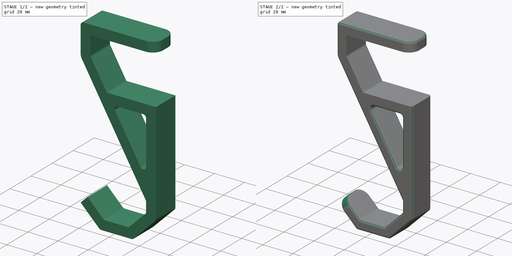
[diagram: build sequence overview — one tinted view per stage of 2, left to right]
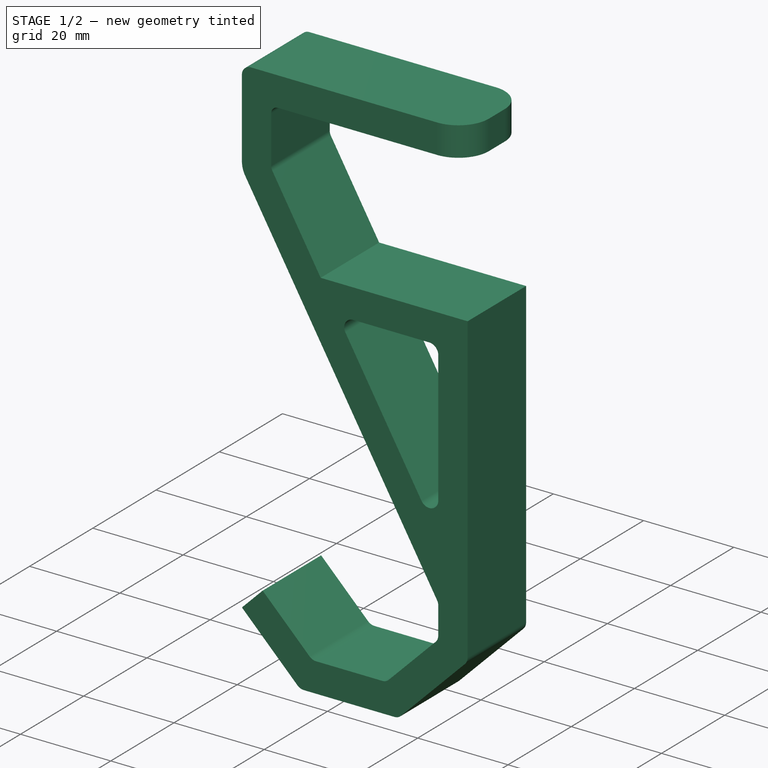
[diagram: stage 1 of 2 — iso view after this stage's code; geometry added in this stage tinted green]
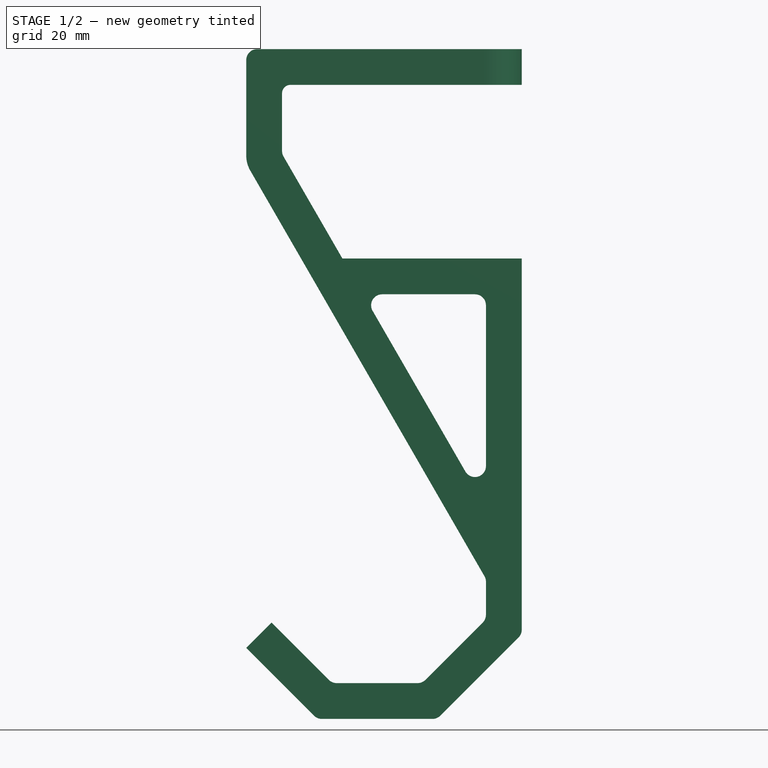
[diagram: stage 1 of 2 — front view after this stage's code; geometry added in this stage tinted green]
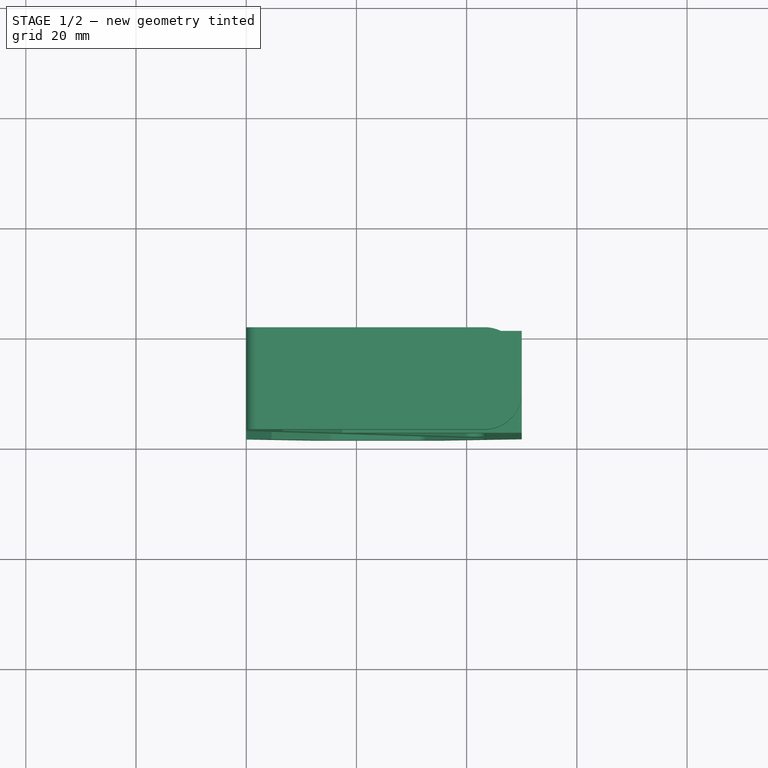
[diagram: stage 1 of 2 — top view after this stage's code; geometry added in this stage tinted green]
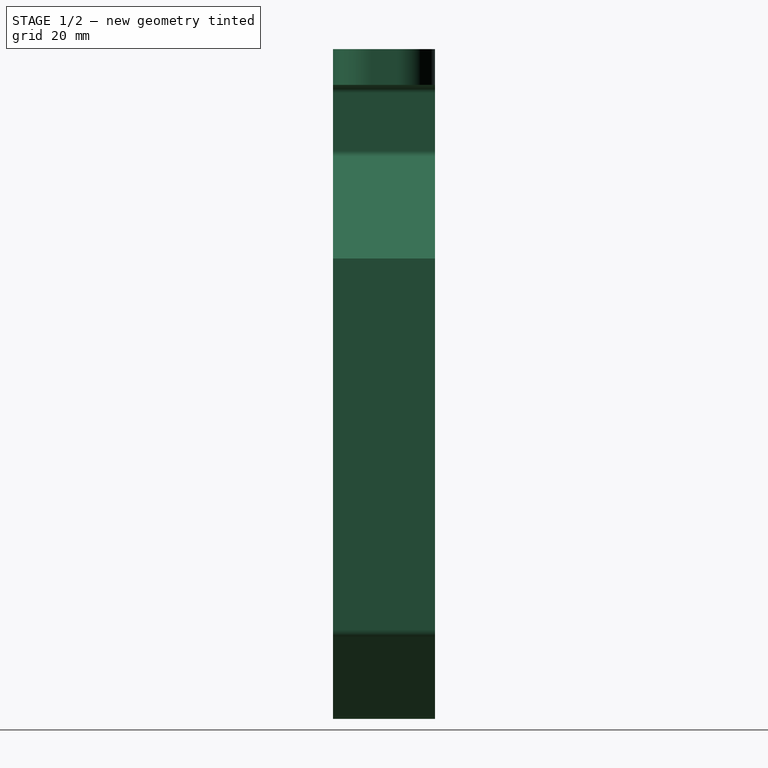
[diagram: stage 1 of 2 — right view after this stage's code; geometry added in this stage tinted green]
FCSTD DOCUMENT  (FreeCAD 0.18R4 (GitTag))
Label: desk_hook
License: All rights reserved
LicenseURL: http://en.wikipedia.org/wiki/All_rights_reserved
objects: Sketcher::SketchObject×3, PartDesign::Pocket×2, PartDesign::Pad×1, PartDesign::Body×1, Part::Fillet×1
note: 11 computed .brp shape members not serialized (recipe doc carries the construction recipe); baked Part::Feature solids carry a one-line shape summary decoded from their .brp

FEATURE [Sketcher::SketchObject] Sketch  label="sketch003"
  MapMode = 5
  Placement = pos=(0,0,0) rot=(1,0,0;1.5708rad)
  Support = -> [XZ_Plane]
  expr: Constraints[27] = Constraints.material_thickness
  expr: Constraints[40] = Constraints.material_thickness
  expr: Constraints[65] = Constraints.material_thickness
  expr: Constraints[63] = Constraints.material_thickness
  expr: Constraints[62] = Constraints.material_thickness
  expr: Constraints[60] = Constraints.material_thickness
  expr: Constraints[38] = Constraints.material_thickness
  sketch-geometry (34):
    g0: LineSegment StartX=50 StartY=121.552 StartZ=0 EndX=2 EndY=121.552 EndZ=0
    g1: LineSegment StartX=0 StartY=12.8843 StartZ=0 EndX=12.2985 EndY=0.585786 EndZ=0
    g2: LineSegment StartX=13.7127 StartY=0 StartZ=0 EndX=33.7977 EndY=0 EndZ=0
    g3: LineSegment StartX=35.2119 StartY=0.585786 StartZ=0 EndX=49.4142 EndY=14.7881 EndZ=0
    g4: LineSegment StartX=42.9142 StartY=17.4804 StartZ=0 EndX=32.5196 EndY=7.08579 EndZ=0
    g5: LineSegment StartX=31.1053 StartY=6.5 StartZ=0 EndX=16.4051 EndY=6.5 EndZ=0
    g6: LineSegment StartX=14.9909 StartY=7.08579 StartZ=0 EndX=4.59619 EndY=17.4804 EndZ=0
    g7: LineSegment StartX=8 StartY=115.052 StartZ=0 EndX=50 EndY=115.052 EndZ=0
    g8: LineSegment StartX=50 StartY=115.052 StartZ=0 EndX=50 EndY=121.552 EndZ=0
    g9: LineSegment StartX=0.73686 StartY=99.4985 StartZ=0 EndX=43.2321 EndY=25.8947 EndZ=0
    g10: LineSegment StartX=43.5 StartY=24.8947 StartZ=0 EndX=43.5 EndY=18.8947 EndZ=0
    g11: LineSegment StartX=0 StartY=12.8843 StartZ=0 EndX=4.59619 EndY=17.4804 EndZ=0
    g12: LineSegment StartX=50 StartY=83.5523 StartZ=0 EndX=50 EndY=16.2023 EndZ=0
    g13: LineSegment StartX=43.5 StartY=75.0523 StartZ=0 EndX=43.5 EndY=45.8947 EndZ=0
    g14: LineSegment StartX=39.7679 StartY=44.8947 StartZ=0 EndX=22.9338 EndY=74.0523 EndZ=0
    g15: LineSegment StartX=6.5 StartY=113.552 StartZ=0 EndX=6.5 EndY=103.052 EndZ=0
    g16: LineSegment StartX=17.4489 StartY=83.5523 StartZ=0 EndX=50 EndY=83.5523 EndZ=0
    g17: LineSegment StartX=0 StartY=119.552 StartZ=0 EndX=0 EndY=102.248 EndZ=0
    g18: LineSegment StartX=17.4489 StartY=83.5523 StartZ=0 EndX=6.76795 EndY=102.052 EndZ=0
    g19: ArcOfCircle CenterX=8.5 CenterY=103.052 CenterZ=0 NormalX=0 NormalY=0 NormalZ=1 AngleXU=0 Radius=2 StartAngle=3.14159 EndAngle=3.66519
    g20: ArcOfCircle CenterX=8 CenterY=113.552 CenterZ=0 NormalX=0 NormalY=0 NormalZ=1 AngleXU=0 Radius=1.5 StartAngle=1.5708 EndAngle=3.14159
    g21: ArcOfCircle CenterX=41.5 CenterY=45.8947 CenterZ=0 NormalX=0 NormalY=0 NormalZ=1 AngleXU=0 Radius=2 StartAngle=3.66519 EndAngle=6.28319
    g22: ArcOfCircle CenterX=41.5 CenterY=75.0523 CenterZ=0 NormalX=0 NormalY=0 NormalZ=1 AngleXU=0 Radius=2 StartAngle=-1.8e-15 EndAngle=1.5708
    g23: ArcOfCircle CenterX=24.6658 CenterY=75.0523 CenterZ=0 NormalX=0 NormalY=0 NormalZ=1 AngleXU=0 Radius=2 StartAngle=1.5708 EndAngle=3.66519
    g24: LineSegment StartX=24.6658 StartY=77.0523 StartZ=0 EndX=41.5 EndY=77.0523 EndZ=0
    g25: ArcOfCircle CenterX=16.4051 CenterY=8.5 CenterZ=0 NormalX=0 NormalY=0 NormalZ=1 AngleXU=0 Radius=2 StartAngle=3.92699 EndAngle=4.71239
    g26: ArcOfCircle CenterX=31.1053 CenterY=8.5 CenterZ=0 NormalX=0 NormalY=0 NormalZ=1 AngleXU=0 Radius=2 StartAngle=4.71239 EndAngle=5.49779
    g27: ArcOfCircle CenterX=33.7977 CenterY=2 CenterZ=0 NormalX=0 NormalY=0 NormalZ=1 AngleXU=0 Radius=2 StartAngle=4.71239 EndAngle=5.49779
    g28: ArcOfCircle CenterX=13.7127 CenterY=2 CenterZ=0 NormalX=0 NormalY=0 NormalZ=1 AngleXU=0 Radius=2 StartAngle=3.92699 EndAngle=4.71239
    g29: ArcOfCircle CenterX=41.5 CenterY=24.8947 CenterZ=0 NormalX=0 NormalY=0 NormalZ=1 AngleXU=0 Radius=2 StartAngle=5e-16 EndAngle=0.523599
    g30: ArcOfCircle CenterX=41.5 CenterY=18.8947 CenterZ=0 NormalX=0 NormalY=0 NormalZ=1 AngleXU=0 Radius=2 StartAngle=5.49779 EndAngle=6.28319
    g31: ArcOfCircle CenterX=48 CenterY=16.2023 CenterZ=0 NormalX=0 NormalY=0 NormalZ=1 AngleXU=0 Radius=2 StartAngle=5.49779 EndAngle=6.28319
    g32: ArcOfCircle CenterX=2 CenterY=119.552 CenterZ=0 NormalX=0 NormalY=0 NormalZ=1 AngleXU=0 Radius=2 StartAngle=1.5708 EndAngle=3.14159
    g33: ArcOfCircle CenterX=5.5 CenterY=102.248 CenterZ=0 NormalX=0 NormalY=0 NormalZ=1 AngleXU=0 Radius=5.5 StartAngle=3.14159 EndAngle=3.66519
  constraints (88):
    c: Vertical(g8)
    c: Horizontal(g0)
    c: Horizontal(g7)
    c: Horizontal(g5)
    c: Tangent(g2,g-1)
    c: Parallel(g1,g6)
    c: Equal(g6,g4)
    c: Vertical(g13)
    c: Vertical(g10)
    c: Perpendicular(g6,g11)
    c: Equal(g5,g4)
    c: Parallel(g4,g3)
    c: Angle(g4,g5) = 2.35619
    c: Angle(g5,g6) = 2.35619
    c: Parallel(g12,g13)
    c: Vertical(g17)
    c: Coincident(g16,g18)
    c: Tangent(g15,g19) = -1.5708
    c: Tangent(g18,g19) = 1.5708
    c: Radius(g19) = 2
    c: Parallel(g15,g17)
    c: Parallel(g18,g14)
    c: Parallel(g14,g9)
    c: Distance(g16,g9) = 6.5
    c: Tangent(g15,g20) = -1.5708
    c: Tangent(g7,g20) = 1.5708
    c: Radius(g20) = 1.5
    c: Distance(g15,g17) = 6.5
    c: Tangent(g23,g24) = 1.5708
    c: Tangent(g14,g23) = 1.5708
    c: Tangent(g22,g24) = 1.5708
    c: Tangent(g13,g22) = 1.5708
    c: Tangent(g13,g21) = 1.5708
    c: Tangent(g14,g21) = 1.5708
    c: Radius(g22) = 2
    c: Equal(g22,g23)
    c: Equal(g22,g21)
    c: Parallel(g24,g16)
    c: Distance(g14,g9) = 6.5
    c: Parallel(g7,g16)
    c: Distance(g23,g16) = 6.5
    c: Tangent(g6,g25) = 1.5708
    c: Tangent(g5,g25) = 1.5708
    c: Tangent(g4,g26) = 1.5708
    c: Tangent(g5,g26) = 1.5708
    c: Tangent(g2,g27) = -1.5708
    c: Tangent(g3,g27) = -1.5708
    c: Tangent(g1,g28) = -1.5708
    c: Tangent(g2,g28) = -1.5708
    c: Tangent(g9,g29) = 1.5708
    c: Tangent(g10,g29) = 1.5708
    c: Tangent(g10,g30) = 1.5708
    c: Tangent(g4,g30) = 1.5708
    c: Tangent(g12,g31) = 1.5708
    c: Tangent(g3,g31) = -1.5708
    c: Tangent(g17,g32) = -1.5708
    c: Tangent(g0,g32) = -1.5708
    c: Tangent(g17,g33) = -1.5708
    c: Tangent(g9,g33) = -1.5708
    c: DistanceY(g7,g0) = 6.5  'material_thickness'
    c: Distance(g13,g12) = 6.5
    c: PointOnObject(g17,g-2)
    c: Distance(g6,g1) = 6.5
    c: Distance(g5,g2) = 6.5
    c: Distance(g4,g3) = 6.5
    c: Distance(g10,g12) = 6.5
    c: Radius(g28) = 2
    c: Equal(g28,g27)
    c: Radius(g31) = 2
    c: Radius(g29) = 2
    c: Equal(g29,g30)
    c: Radius(g26) = 2
    c: DistanceX(g11,g17) = 0
    c: DistanceX(g12,g8) = 0
    c: DistanceY(g16,g7) = 31.5
    c: Radius(g25) = 2
    c: Radius(g32) = 2
    c: Radius(g33) = 5.5
    c: DistanceY(g10,g10) = 6
    c: DistanceX(g17,g8) = 50
    c: Coincident(g0,g8)
    c: Coincident(g7,g8)
    c: Coincident(g6,g11)
    c: Coincident(g1,g11)
    c: DistanceY(g2,g0) = 121.552
    c: Angle(g16,g18) = 2.0944
    c: DistanceY(g18,g7) = 13
    c: Coincident(g12,g16)
FEATURE [PartDesign::Pad] Pad
  Length = 18.5
  Length2 = 100
  Placement = pos=(0,0,0) rot=(1,0,0;1.5708rad)
  Profile = -> Sketch
  Type = 0
FEATURE [Sketcher::SketchObject] Sketch001
  ExternalGeometry = -> [Pad]
  MapMode = 5
  Placement = pos=(0,-2.7e-14,121.552) rot=(0,0,1;3.14159rad)
  Support = -> [Pad]
  sketch-geometry (6):
    g0: LineSegment StartX=-43.25 StartY=5.027e-13 StartZ=0 EndX=-51 EndY=5.027e-13 EndZ=0
    g1: LineSegment StartX=-51 StartY=5.027e-13 StartZ=0 EndX=-51 EndY=18.5 EndZ=0
    g2: LineSegment StartX=-51 StartY=18.5 StartZ=0 EndX=-43.25 EndY=18.5 EndZ=0
    g3: LineSegment StartX=-50 StartY=11.75 StartZ=0 EndX=-50 EndY=6.75 EndZ=0
    g4: ArcOfCircle CenterX=-43.25 CenterY=6.75 CenterZ=0 NormalX=0 NormalY=0 NormalZ=1 AngleXU=0 Radius=6.75 StartAngle=3.14159 EndAngle=4.71239
    g5: ArcOfCircle CenterX=-43.25 CenterY=11.75 CenterZ=0 NormalX=0 NormalY=0 NormalZ=1 AngleXU=0 Radius=6.75 StartAngle=1.5708 EndAngle=3.14159
  constraints (16):
    c: Coincident(g0,g1)
    c: Coincident(g1,g2)
    c: PointOnObject(g3,g-5)
    c: Vertical(g3)
    c: Horizontal(g2)
    c: Horizontal(g0)
    c: Vertical(g1)
    c: PointOnObject(g0,g-7)
    c: PointOnObject(g2,g-6)
    c: Equal(g2,g0)
    c: Tangent(g0,g4) = 1.5708
    c: Tangent(g2,g5) = 1.5708
    c: Tangent(g3,g4) = -1.5708
    c: Tangent(g3,g5) = -1.5708
    c: DistanceY(g3,g3) = 5
    c: Distance(g3,g1) = 1
FEATURE [PartDesign::Pocket] Pocket
  BaseFeature = -> Pad
  Length = 5
  Length2 = 100
  Placement = pos=(0,0,0) rot=(1,0,0;1.5708rad)
  Profile = -> Sketch001
  Type = 2
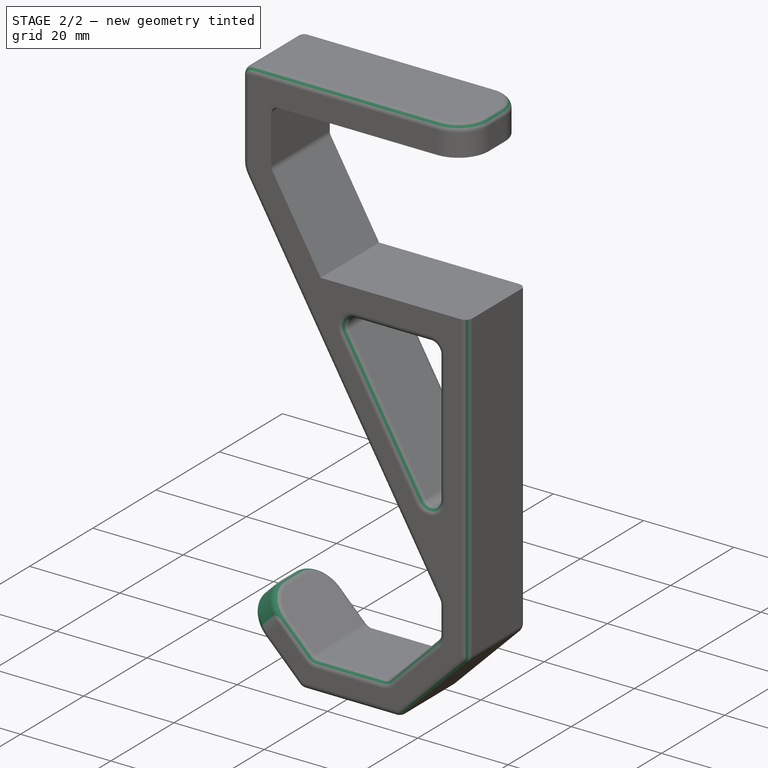
[diagram: stage 2 of 2 — iso view after this stage's code; geometry added in this stage tinted green]
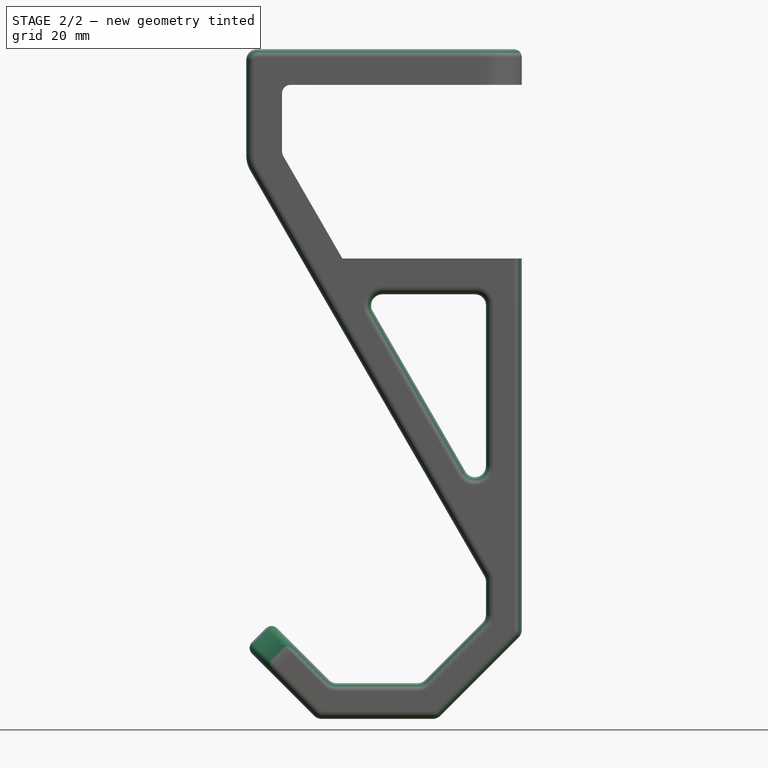
[diagram: stage 2 of 2 — front view after this stage's code; geometry added in this stage tinted green]
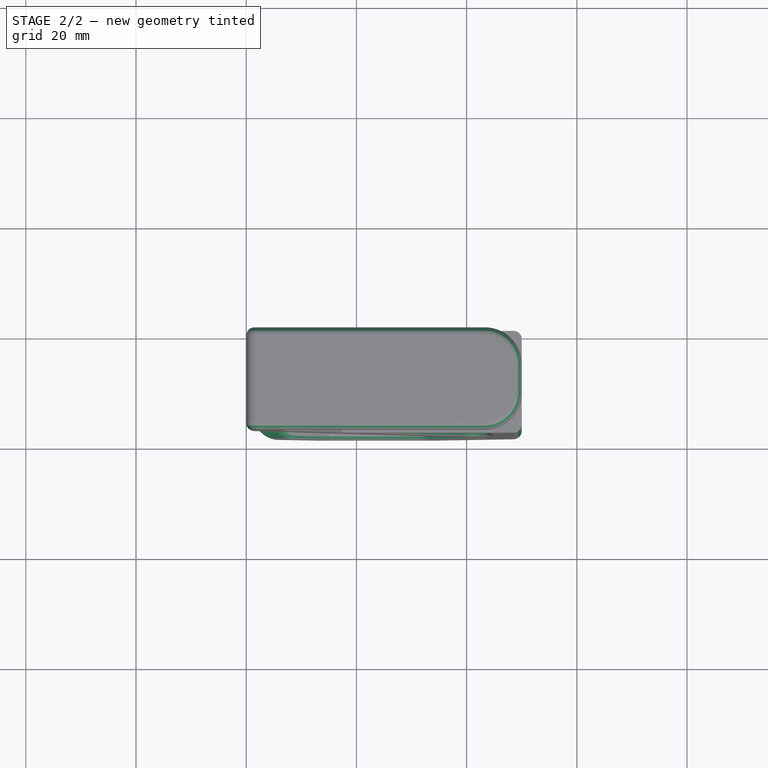
[diagram: stage 2 of 2 — top view after this stage's code; geometry added in this stage tinted green]
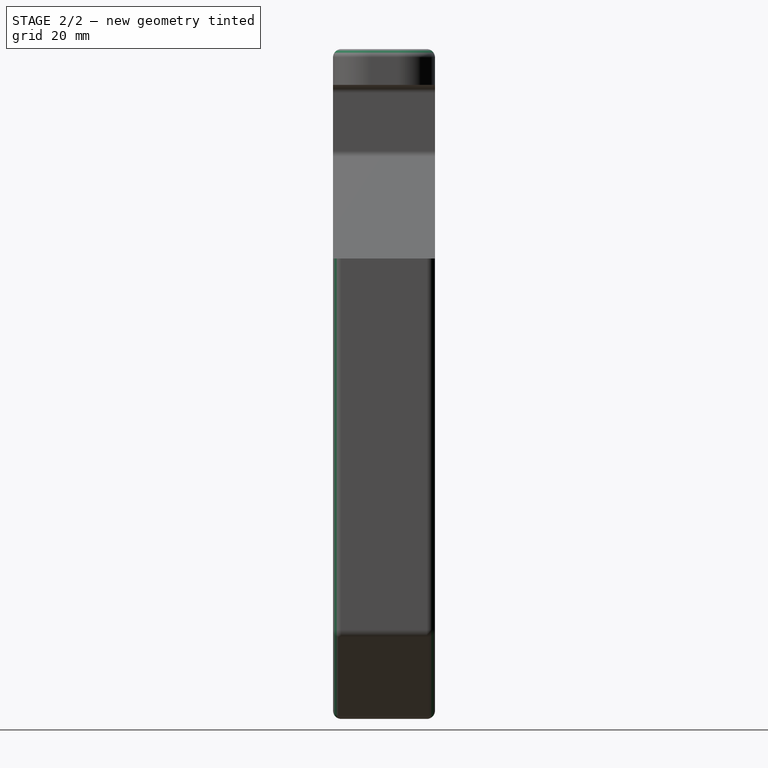
[diagram: stage 2 of 2 — right view after this stage's code; geometry added in this stage tinted green]
FEATURE [Sketcher::SketchObject] Sketch002
  ExternalGeometry = -> [Pocket]
  MapMode = 5
  Placement = pos=(6.44213,-1.4e-15,6.44213) rot=(0.92388,0,-0.382683;3.14159rad)
  Support = -> [Pad]
  sketch-geometry (6):
    g0: LineSegment StartX=-10.1105 StartY=18.5 StartZ=0 EndX=-2.36054 EndY=18.5 EndZ=0
    g1: LineSegment StartX=-9.11054 StartY=11.75 StartZ=0 EndX=-9.11054 EndY=6.75 EndZ=0
    g2: LineSegment StartX=-2.36054 StartY=0 StartZ=0 EndX=-10.1105 EndY=0 EndZ=0
    g3: LineSegment StartX=-10.1105 StartY=0 StartZ=0 EndX=-10.1105 EndY=18.5 EndZ=0
    g4: ArcOfCircle CenterX=-2.36054 CenterY=6.75 CenterZ=0 NormalX=0 NormalY=0 NormalZ=1 AngleXU=0 Radius=6.75 StartAngle=3.14159 EndAngle=4.71239
    g5: ArcOfCircle CenterX=-2.36054 CenterY=11.75 CenterZ=0 NormalX=0 NormalY=0 NormalZ=1 AngleXU=0 Radius=6.75 StartAngle=1.5708 EndAngle=3.14159
  constraints (16):
    c: Coincident(g2,g3)
    c: Coincident(g0,g3)
    c: Tangent(g0,g5) = 1.5708
    c: Tangent(g2,g4) = 1.5708
    c: Parallel(g0,g2)
    c: DistanceX(g-3,g1) = 0
    c: Vertical(g1)
    c: Tangent(g1,g5) = -1.5708
    c: Tangent(g1,g4) = -1.5708
    c: Horizontal(g0)
    c: Equal(g0,g2)
    c: Vertical(g3)
    c: PointOnObject(g0,g-3)
    c: PointOnObject(g2,g-1)
    c: DistanceY(g1,g1) = 5
    c: Distance(g1,g3) = 1
FEATURE [PartDesign::Pocket] Pocket001
  BaseFeature = -> Pocket
  Length = 5
  Length2 = 100
  Placement = pos=(0,0,0) rot=(1,0,0;1.5708rad)
  Profile = -> Sketch002
  Type = 2
FEATURE [PartDesign::Body] Body
  Group = -> [Sketch,Pad,Sketch001,Pocket,Sketch002,Pocket001]
  Origin = -> Origin
  Tip = -> Pocket001
FEATURE [Part::Fillet] Fillet
  Base = -> Pocket001
  Edges = 6 edges r=1.5: [Edge14,Edge22,Edge38,Edge53,Edge61,Edge76]
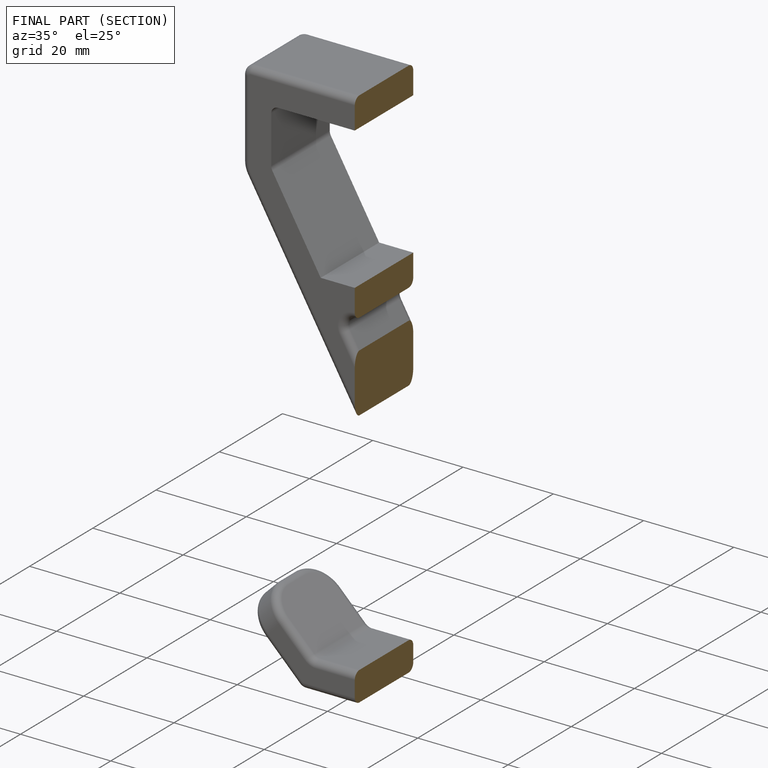
[diagram: finished part — half-section view (interior)]
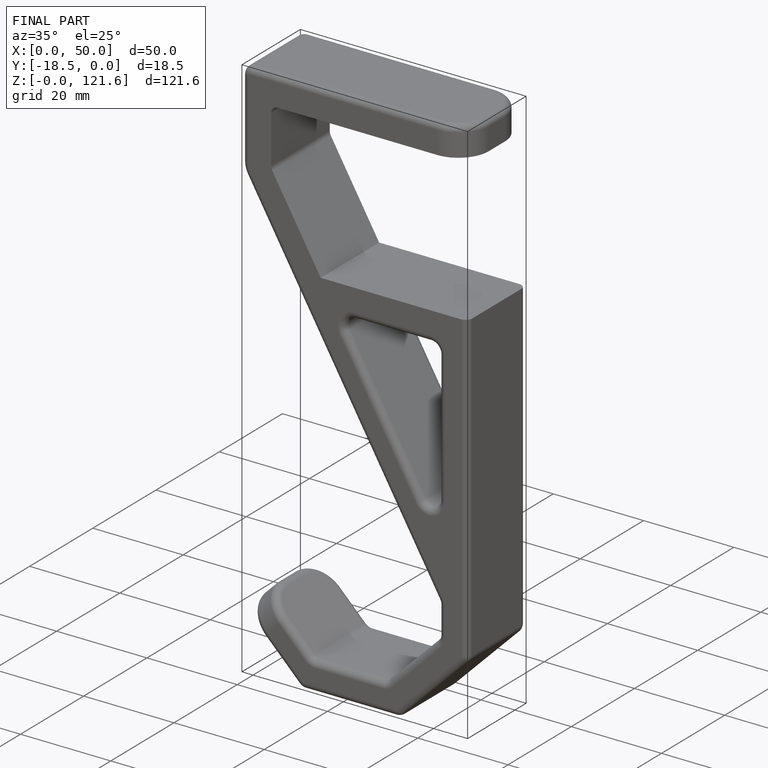
[diagram: finished part — iso view with bounding-box wireframe]
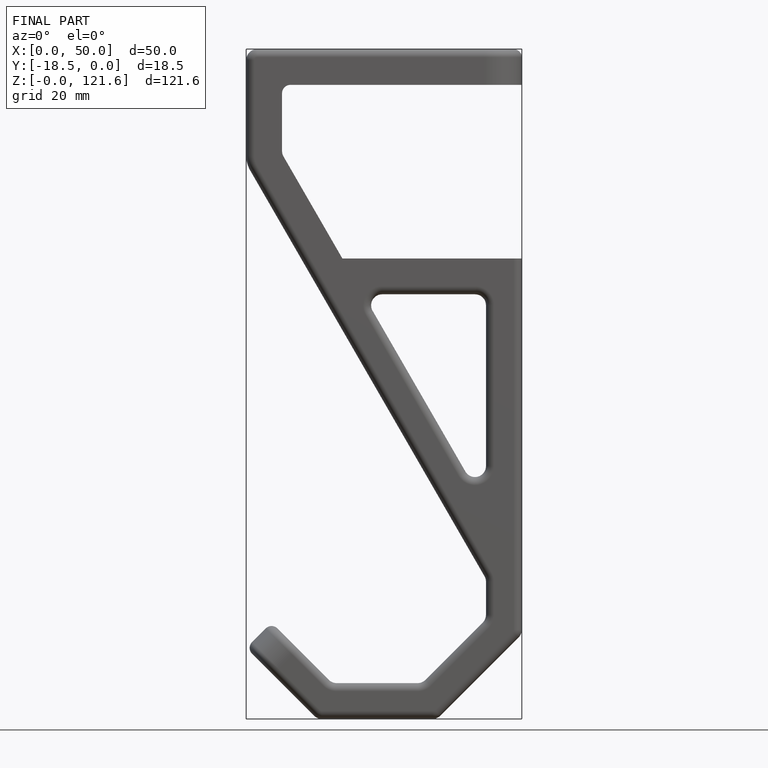
[diagram: finished part — front view with bounding-box wireframe]
